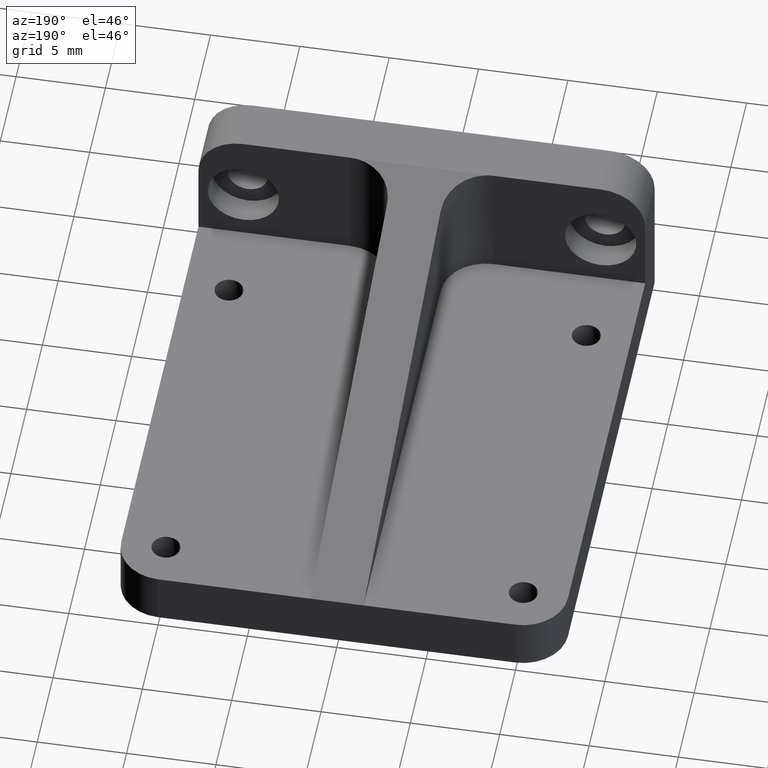
[diagram: clean part render]
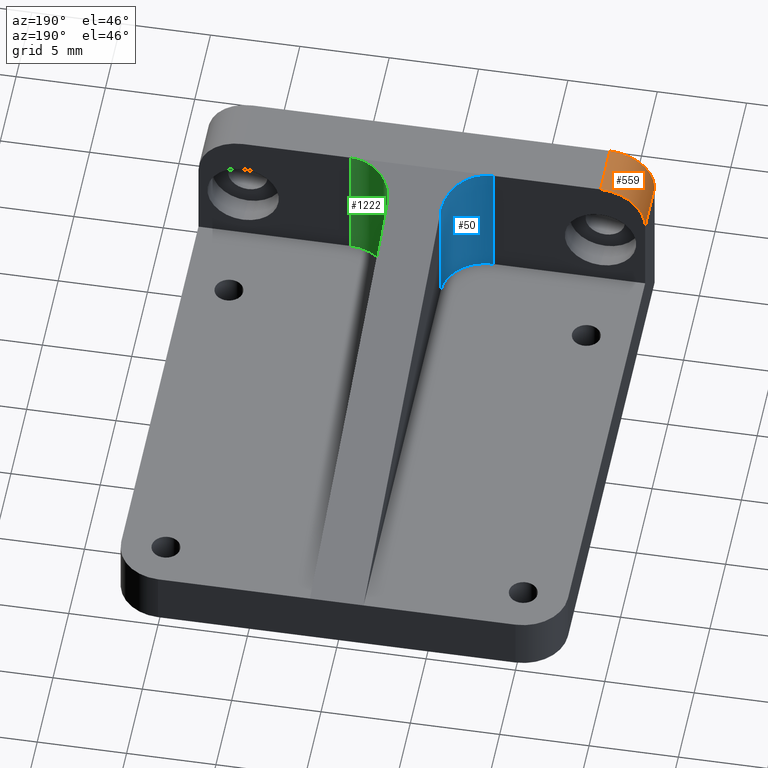
[diagram: same view with three faces highlighted in distinct colors, each labeled with its STEP entity id]
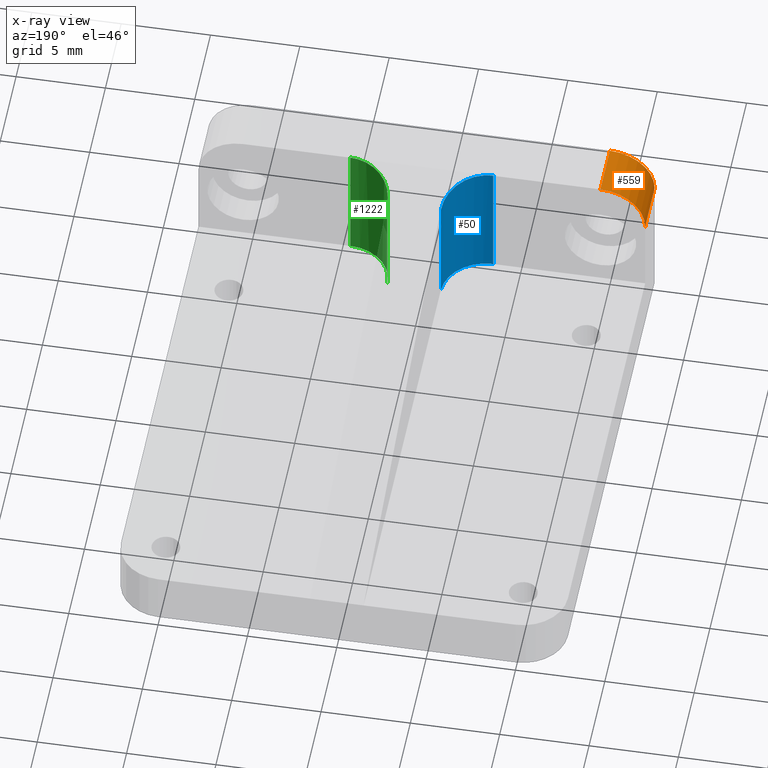
[diagram: x-ray of the same camera — body ghosted, the three highlighted faces saturated]
A machine part, auxiliary view with three faces highlighted in distinct colors.
The next image is the same camera in x-ray (body ghosted, the three faces saturated) — at least one of them is partly hidden behind the body in this view.
Their STEP definitions:

[orange] entity #559 — the highlighted cylindrical surface (partial cylindrical patch) has radius 2.5 mm, axis along (0, 1, 0).
#5 = DIRECTION ( 'NONE',  ( 6.938893903907227392E-16, 0.0000000000000000000, -1.000000000000000000 ) ) ;
#34 = CARTESIAN_POINT ( 'NONE',  ( -12.50000000000000000, 3.000000000000000000, 7.500000000000000000 ) ) ;
#42 = DIRECTION ( 'NONE',  ( 0.0000000000000000000, -1.000000000000000000, 0.0000000000000000000 ) ) ;
#43 = ORIENTED_EDGE ( 'NONE', *, *, #750, .F. ) ;
#65 = DIRECTION ( 'NONE',  ( 0.0000000000000000000, 0.0000000000000000000, 1.000000000000000000 ) ) ;
#72 = DIRECTION ( 'NONE',  ( -0.0000000000000000000, -1.000000000000000000, -0.0000000000000000000 ) ) ;
#88 = EDGE_LOOP ( 'NONE', ( #480, #127, #43, #151 ) ) ;
#89 = CARTESIAN_POINT ( 'NONE',  ( -9.999999999999998224, 3.000000000000000000, 7.500000000000000000 ) ) ;
#108 = CIRCLE ( 'NONE', #229, 2.500000000000000444 ) ;
#127 = ORIENTED_EDGE ( 'NONE', *, *, #565, .F. ) ;
#151 = ORIENTED_EDGE ( 'NONE', *, *, #1245, .F. ) ;
#167 = AXIS2_PLACEMENT_3D ( 'NONE', #89, #938, #5 ) ;
#221 = LINE ( 'NONE', #348, #677 ) ;
#229 = AXIS2_PLACEMENT_3D ( 'NONE', #320, #72, #65 ) ;
#320 = CARTESIAN_POINT ( 'NONE',  ( -9.999999999999998224, 0.0000000000000000000, 7.500000000000000000 ) ) ;
#338 = CYLINDRICAL_SURFACE ( 'NONE', #534, 2.500000000000000444 ) ;
#348 = CARTESIAN_POINT ( 'NONE',  ( -9.999999999999998224, 0.0000000000000000000, 10.00000000000000000 ) ) ;
#351 = VERTEX_POINT ( 'NONE', #34 ) ;
#395 = CARTESIAN_POINT ( 'NONE',  ( -12.50000000000000000, 3.000000000000000000, 7.500000000000000000 ) ) ;
#440 = CARTESIAN_POINT ( 'NONE',  ( -9.999999999999998224, 0.0000000000000000000, 7.500000000000000000 ) ) ;
#480 = ORIENTED_EDGE ( 'NONE', *, *, #940, .F. ) ;
#534 = AXIS2_PLACEMENT_3D ( 'NONE', #440, #723, #760 ) ;
#554 = FACE_OUTER_BOUND ( 'NONE', #88, .T. ) ;
#559 = ADVANCED_FACE ( 'NONE', ( #554 ), #338, .T. ) ;
#565 = EDGE_CURVE ( 'NONE', #645, #351, #673, .T. ) ;
#588 = CARTESIAN_POINT ( 'NONE',  ( -9.999999999999998224, 3.000000000000000000, 10.00000000000000000 ) ) ;
#607 = CIRCLE ( 'NONE', #167, 2.500000000000000444 ) ;
#614 = VERTEX_POINT ( 'NONE', #588 ) ;
#645 = VERTEX_POINT ( 'NONE', #884 ) ;
#673 = LINE ( 'NONE', #395, #1235 ) ;
#677 = VECTOR ( 'NONE', #42, 1000.000000000000000 ) ;
#723 = DIRECTION ( 'NONE',  ( 0.0000000000000000000, 1.000000000000000000, 0.0000000000000000000 ) ) ;
#750 = EDGE_CURVE ( 'NONE', #1129, #645, #108, .T. ) ;
#760 = DIRECTION ( 'NONE',  ( 0.0000000000000000000, 0.0000000000000000000, 1.000000000000000000 ) ) ;
#884 = CARTESIAN_POINT ( 'NONE',  ( -12.50000000000000000, 0.0000000000000000000, 7.500000000000000000 ) ) ;
#906 = DIRECTION ( 'NONE',  ( -0.0000000000000000000, 1.000000000000000000, -0.0000000000000000000 ) ) ;
#938 = DIRECTION ( 'NONE',  ( -0.0000000000000000000, 1.000000000000000000, -0.0000000000000000000 ) ) ;
#940 = EDGE_CURVE ( 'NONE', #351, #614, #607, .T. ) ;
#976 = CARTESIAN_POINT ( 'NONE',  ( -9.999999999999998224, 0.0000000000000000000, 10.00000000000000000 ) ) ;
#1129 = VERTEX_POINT ( 'NONE', #976 ) ;
#1235 = VECTOR ( 'NONE', #906, 1000.000000000000000 ) ;
#1245 = EDGE_CURVE ( 'NONE', #614, #1129, #221, .T. ) ;

[blue] entity #50 — the highlighted cylindrical surface (partial cylindrical patch) has radius 2.5 mm, axis along (0, 0, -1).
#36 = VECTOR ( 'NONE', #250, 1000.000000000000000 ) ;
#40 = ORIENTED_EDGE ( 'NONE', *, *, #328, .F. ) ;
#50 = ADVANCED_FACE ( 'NONE', ( #620 ), #1205, .F. ) ;
#105 = CARTESIAN_POINT ( 'NONE',  ( -4.000000000000000000, 3.000000000000000000, 10.00000000000000000 ) ) ;
#125 = CARTESIAN_POINT ( 'NONE',  ( -1.500000000000003775, 4.035533905932732424, 9.731528246610036348 ) ) ;
#128 = VERTEX_POINT ( 'NONE', #1005 ) ;
#136 = ORIENTED_EDGE ( 'NONE', *, *, #189, .F. ) ;
#169 = EDGE_LOOP ( 'NONE', ( #136, #956, #40, #1150 ) ) ;
#189 = EDGE_CURVE ( 'NONE', #128, #944, #1232, .T. ) ;
#197 = EDGE_CURVE ( 'NONE', #694, #128, #340, .T. ) ;
#200 = CARTESIAN_POINT ( 'NONE',  ( -1.499999999999998446, 5.499999999999991118, 9.351851851851854747 ) ) ;
#250 = DIRECTION ( 'NONE',  ( -0.0000000000000000000, 0.0000000000000000000, 1.000000000000000000 ) ) ;
#251 = DIRECTION ( 'NONE',  ( 0.0000000000000000000, 0.0000000000000000000, 1.000000000000000000 ) ) ;
#302 = VECTOR ( 'NONE', #1224, 1000.000000000000000 ) ;
#328 = EDGE_CURVE ( 'NONE', #544, #694, #510, .T. ) ;
#340 = LINE ( 'NONE', #725, #302 ) ;
#345 = AXIS2_PLACEMENT_3D ( 'NONE', #1213, #446, #346 ) ;
#346 = DIRECTION ( 'NONE',  ( -1.000000000000000000, 0.0000000000000000000, 0.0000000000000000000 ) ) ;
#446 = DIRECTION ( 'NONE',  ( 0.0000000000000000000, 0.0000000000000000000, -1.000000000000000000 ) ) ;
#510 =( BOUNDED_CURVE ( )  B_SPLINE_CURVE ( 3, ( #200, #125, #972, #105 ),
 .UNSPECIFIED., .F., .T. ) 
 B_SPLINE_CURVE_WITH_KNOTS ( ( 4, 4 ),
 ( 1.570796326794899889, 3.141592653589793560 ),
 .UNSPECIFIED. ) 
 CURVE ( )  GEOMETRIC_REPRESENTATION_ITEM ( )  RATIONAL_B_SPLINE_CURVE ( ( 1.000000000000000000, 0.8047378541243657146, 0.8047378541243657146, 1.000000000000000000 ) ) 
 REPRESENTATION_ITEM ( '' )  );
#529 = AXIS2_PLACEMENT_3D ( 'NONE', #1123, #251, #831 ) ;
#544 = VERTEX_POINT ( 'NONE', #867 ) ;
#620 = FACE_OUTER_BOUND ( 'NONE', #169, .T. ) ;
#694 = VERTEX_POINT ( 'NONE', #1182 ) ;
#725 = CARTESIAN_POINT ( 'NONE',  ( -3.999999999999999112, 3.000000000000000000, 3.000000000000002665 ) ) ;
#761 = CARTESIAN_POINT ( 'NONE',  ( -1.499999999999998446, 5.500000000000000888, 3.000000000000002665 ) ) ;
#831 = DIRECTION ( 'NONE',  ( 1.000000000000000000, 0.0000000000000000000, 0.0000000000000000000 ) ) ;
#867 = CARTESIAN_POINT ( 'NONE',  ( -1.499999999999998446, 5.499999999999991118, 9.351851851851854747 ) ) ;
#944 = VERTEX_POINT ( 'NONE', #761 ) ;
#956 = ORIENTED_EDGE ( 'NONE', *, *, #197, .F. ) ;
#972 = CARTESIAN_POINT ( 'NONE',  ( -2.535533905932741749, 2.999999999999998224, 10.00000000000000178 ) ) ;
#985 = LINE ( 'NONE', #1090, #36 ) ;
#1005 = CARTESIAN_POINT ( 'NONE',  ( -4.000000000000000000, 3.000000000000000000, 3.000000000000002665 ) ) ;
#1090 = CARTESIAN_POINT ( 'NONE',  ( -1.499999999999998224, 5.500000000000000888, 10.00000000000000178 ) ) ;
#1123 = CARTESIAN_POINT ( 'NONE',  ( -3.999999999999999112, 5.500000000000000000, 3.000000000000002665 ) ) ;
#1150 = ORIENTED_EDGE ( 'NONE', *, *, #1237, .F. ) ;
#1182 = CARTESIAN_POINT ( 'NONE',  ( -4.000000000000000000, 3.000000000000000000, 10.00000000000000000 ) ) ;
#1205 = CYLINDRICAL_SURFACE ( 'NONE', #345, 2.499999999999999556 ) ;
#1213 = CARTESIAN_POINT ( 'NONE',  ( -3.999999999999999112, 5.500000000000000000, -29.15475947422650904 ) ) ;
#1224 = DIRECTION ( 'NONE',  ( -0.0000000000000000000, -0.0000000000000000000, -1.000000000000000000 ) ) ;
#1232 = CIRCLE ( 'NONE', #529, 2.500000000000000000 ) ;
#1237 = EDGE_CURVE ( 'NONE', #944, #544, #985, .T. ) ;

[green] entity #1222 — the highlighted cylindrical surface (partial cylindrical patch) has radius 2.5 mm, axis along (0, 0, -1).
#12 = AXIS2_PLACEMENT_3D ( 'NONE', #959, #360, #489 ) ;
#17 = CARTESIAN_POINT ( 'NONE',  ( 4.000000000000003553, 3.000000000000000000, 10.00000000000000000 ) ) ;
#117 = DIRECTION ( 'NONE',  ( 0.0000000000000000000, 0.0000000000000000000, 1.000000000000000000 ) ) ;
#123 = CARTESIAN_POINT ( 'NONE',  ( 4.000000000000003553, 3.000000000000000444, 10.00000000000000178 ) ) ;
#135 = FACE_OUTER_BOUND ( 'NONE', #322, .T. ) ;
#142 = DIRECTION ( 'NONE',  ( -1.000000000000000000, 0.0000000000000000000, 0.0000000000000000000 ) ) ;
#196 = LINE ( 'NONE', #123, #242 ) ;
#201 = CARTESIAN_POINT ( 'NONE',  ( 2.535533905932746634, 2.999999999999999112, 10.00000000000000355 ) ) ;
#230 = CYLINDRICAL_SURFACE ( 'NONE', #898, 2.500000000000000000 ) ;
#242 = VECTOR ( 'NONE', #117, 1000.000000000000000 ) ;
#254 = VERTEX_POINT ( 'NONE', #561 ) ;
#272 = CARTESIAN_POINT ( 'NONE',  ( 1.500000000000004441, 5.499999999999987566, 9.351851851851854747 ) ) ;
#322 = EDGE_LOOP ( 'NONE', ( #986, #704, #759, #718 ) ) ;
#360 = DIRECTION ( 'NONE',  ( 0.0000000000000000000, 0.0000000000000000000, 1.000000000000000000 ) ) ;
#372 = VERTEX_POINT ( 'NONE', #1002 ) ;
#432 = CARTESIAN_POINT ( 'NONE',  ( 4.000000000000003553, 5.500000000000000000, -29.15475947422650904 ) ) ;
#450 = VERTEX_POINT ( 'NONE', #272 ) ;
#485 = EDGE_CURVE ( 'NONE', #450, #254, #753, .T. ) ;
#489 = DIRECTION ( 'NONE',  ( 1.000000000000000000, 0.0000000000000000000, 0.0000000000000000000 ) ) ;
#526 = EDGE_CURVE ( 'NONE', #254, #372, #1152, .T. ) ;
#561 = CARTESIAN_POINT ( 'NONE',  ( 1.500000000000004441, 5.500000000000000000, 3.000000000000002665 ) ) ;
#577 = VERTEX_POINT ( 'NONE', #17 ) ;
#589 = CARTESIAN_POINT ( 'NONE',  ( 1.500000000000004441, 5.499999999999987566, 9.351851851851854747 ) ) ;
#654 = EDGE_CURVE ( 'NONE', #372, #577, #196, .T. ) ;
#704 = ORIENTED_EDGE ( 'NONE', *, *, #485, .F. ) ;
#718 = ORIENTED_EDGE ( 'NONE', *, *, #654, .F. ) ;
#753 = LINE ( 'NONE', #1115, #1047 ) ;
#759 = ORIENTED_EDGE ( 'NONE', *, *, #1128, .F. ) ;
#822 =( BOUNDED_CURVE ( )  B_SPLINE_CURVE ( 3, ( #879, #201, #875, #589 ),
 .UNSPECIFIED., .F., .T. ) 
 B_SPLINE_CURVE_WITH_KNOTS ( ( 4, 4 ),
 ( 3.141592653589793116, 4.712388980384685233 ),
 .UNSPECIFIED. ) 
 CURVE ( )  GEOMETRIC_REPRESENTATION_ITEM ( )  RATIONAL_B_SPLINE_CURVE ( ( 1.000000000000000000, 0.8047378541243661587, 0.8047378541243661587, 1.000000000000000000 ) ) 
 REPRESENTATION_ITEM ( '' )  );
#875 = CARTESIAN_POINT ( 'NONE',  ( 1.500000000000010214, 4.035533905932730647, 9.731528246610036348 ) ) ;
#879 = CARTESIAN_POINT ( 'NONE',  ( 4.000000000000003553, 3.000000000000000000, 10.00000000000000000 ) ) ;
#898 = AXIS2_PLACEMENT_3D ( 'NONE', #432, #1011, #142 ) ;
#959 = CARTESIAN_POINT ( 'NONE',  ( 4.000000000000003553, 5.500000000000000000, 3.000000000000002665 ) ) ;
#986 = ORIENTED_EDGE ( 'NONE', *, *, #526, .F. ) ;
#1002 = CARTESIAN_POINT ( 'NONE',  ( 4.000000000000003553, 3.000000000000000444, 3.000000000000002665 ) ) ;
#1011 = DIRECTION ( 'NONE',  ( 0.0000000000000000000, 0.0000000000000000000, -1.000000000000000000 ) ) ;
#1047 = VECTOR ( 'NONE', #1098, 1000.000000000000000 ) ;
#1098 = DIRECTION ( 'NONE',  ( -0.0000000000000000000, 0.0000000000000000000, -1.000000000000000000 ) ) ;
#1115 = CARTESIAN_POINT ( 'NONE',  ( 1.500000000000004441, 5.500000000000000000, 3.000000000000002665 ) ) ;
#1128 = EDGE_CURVE ( 'NONE', #577, #450, #822, .T. ) ;
#1152 = CIRCLE ( 'NONE', #12, 2.500000000000000444 ) ;
#1222 = ADVANCED_FACE ( 'NONE', ( #135 ), #230, .F. ) ;